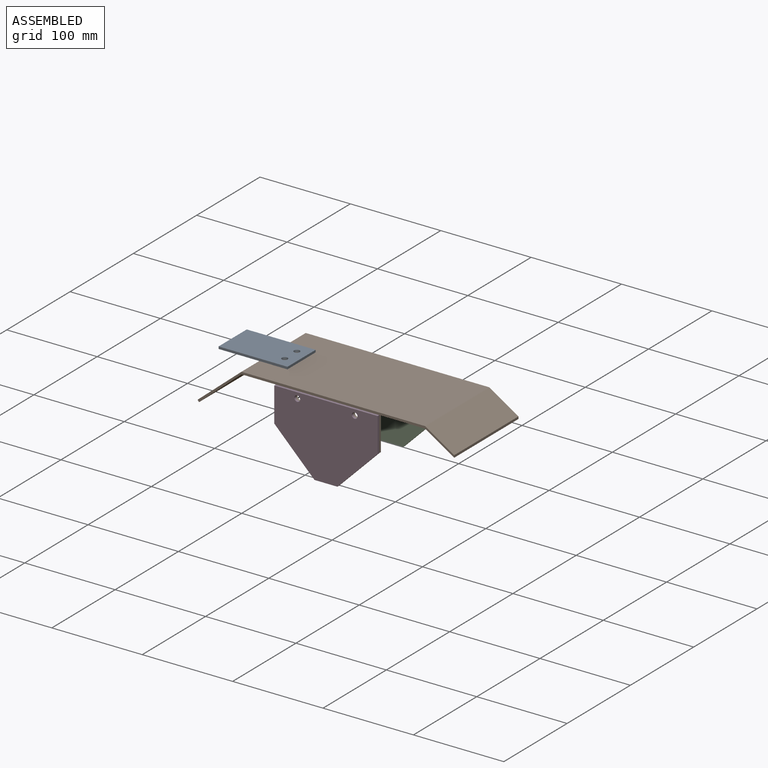
[diagram: assembled view]
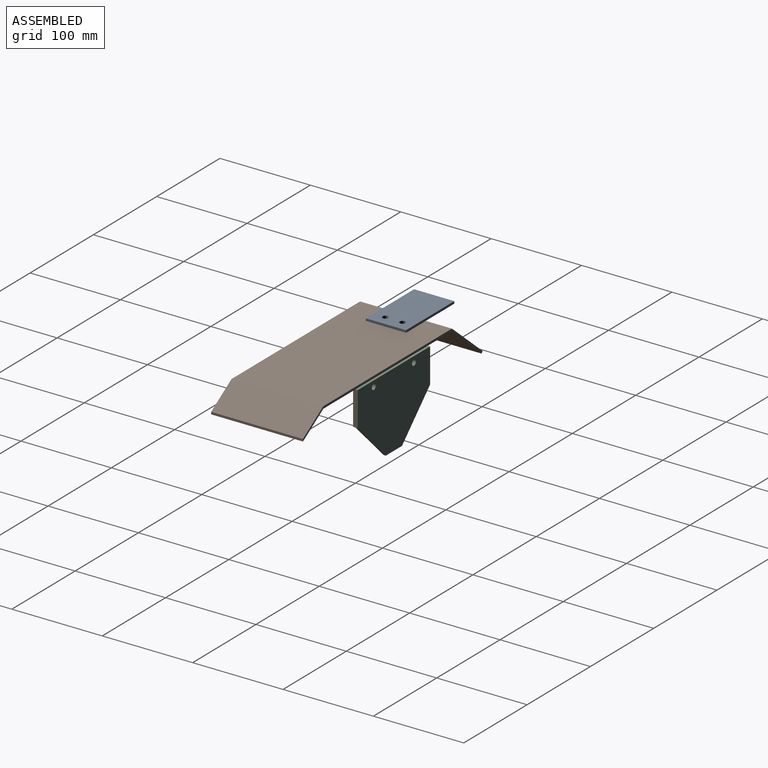
[diagram: assembled view, second angle]
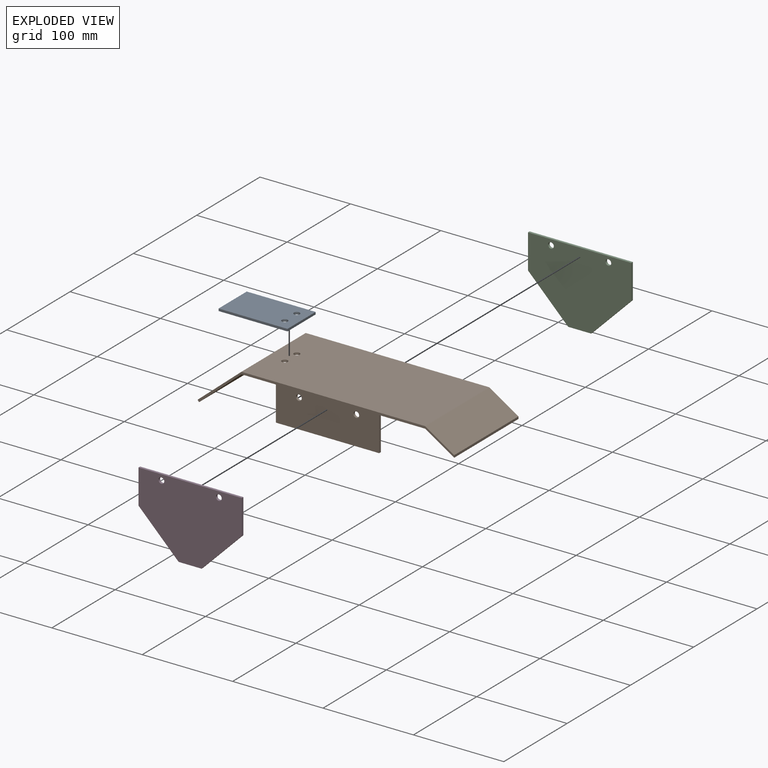
[diagram: exploded view]
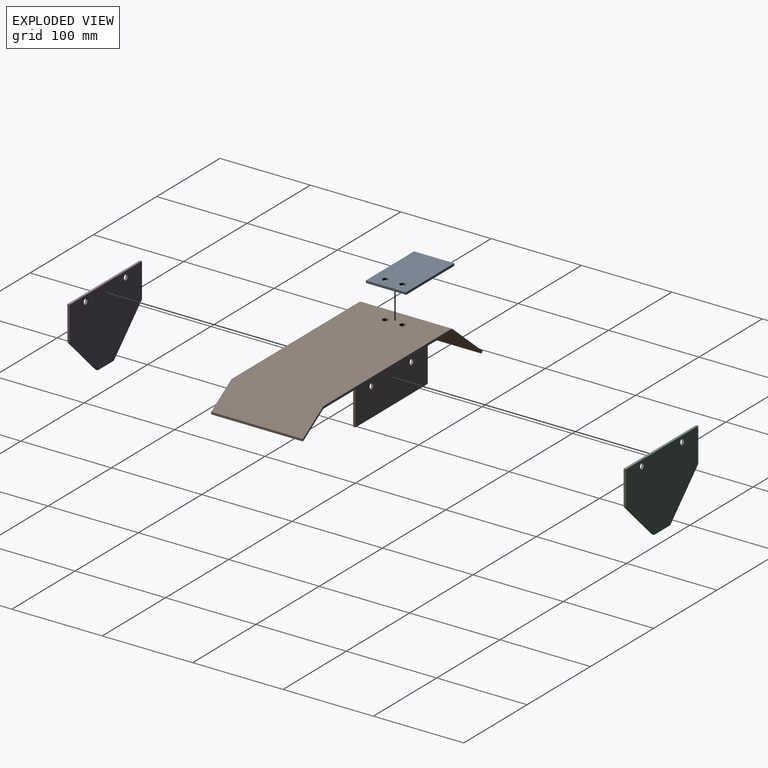
[diagram: exploded view, second angle]
ASSEMBLY  parts=4 mates=3
PART A: 8 faces, bbox 76.2x44.5x2.5 mm
  f0: plane 76.2x2.54mm, normal (0,1,0), area 193.5mm2, adj f1,f5,f6,f7
  f1: plane 44.45x2.54mm, normal (-1,0,0), area 112.9mm2, adj f0,f2,f6,f7
  f2: plane 76.2x2.54mm, normal (0,-1,0), area 193.5mm2, adj f1,f5,f6,f7
  f3: cylinder r=3.17mm len=6.35mm, axis (0,0,-1), area 50.7mm2, adj f6,f7
  f4: cylinder r=3.17mm len=6.35mm, axis (0,0,-1), area 50.7mm2, adj f6,f7
  f5: plane 44.45x2.54mm, normal (1,0,0), area 112.9mm2, adj f0,f2,f6,f7
  f6: plane 76.2x44.45mm, normal (0,0,1), area 3323.8mm2, adj f0,f1,f2,f3,f4,f5
  f7: plane 76.2x44.45mm, normal (0,0,-1), area 3323.8mm2, adj f0,f1,f2,f3,f4,f5
PART B: 24 faces, bbox 283.9x101.6x42.9 mm
  f0: plane 283.85x42.87mm, normal (0,1,0), area 5029.4mm2, adj f2,f3,f8,f9,f11,f12,f13,f14
  f1: plane 283.85x42.87mm, normal (0,-1,0), area 5029.4mm2, adj f2,f3,f4,f6,f7,f12,f13,f14
  f2: plane 203.2x101.6mm, normal (0,0,1), area 20581.8mm2, adj f0,f1,f13,f17,f22,f23
  f3: plane 203.2x101.6mm, normal (0,0,-1), area 20001.1mm2, adj f0,f1,f4,f5,f6,f8,f9,f10
  f4: plane 38.1x2.54mm, normal (-1,0,0), area 96.8mm2, adj f1,f3,f5,f7
  f5: plane 114.3x38.1mm, normal (0,1,0), area 4291.5mm2, adj f3,f4,f6,f7,f20,f21
  f6: plane 38.1x2.54mm, normal (1,0,0), area 96.8mm2, adj f1,f3,f5,f7
  f7: plane 114.3x2.54mm, normal (0,0,-1), area 290.3mm2, adj f1,f4,f5,f6
  f8: plane 38.1x2.54mm, normal (-1,0,0), area 96.8mm2, adj f0,f3,f10,f11
  f9: plane 38.1x2.54mm, normal (1,0,0), area 96.8mm2, adj f0,f3,f10,f11
  f10: plane 114.3x38.1mm, normal (0,-1,0), area 4291.5mm2, adj f3,f8,f9,f11,f18,f19
  f11: plane 114.3x2.54mm, normal (0,0,-1), area 290.3mm2, adj f0,f8,f9,f10
  f12: plane 101.6x46.88mm, normal (0.65,0,-0.76), area 6283mm2, adj f0,f1,f3,f14
  f13: plane 101.6x48.54mm, normal (-0.64,0,0.76), area 6451.6mm2, adj f0,f1,f2,f14
  f14: plane 101.6x1.93mm, normal (-0.76,0,-0.65), area 258.1mm2, adj f0,f1,f12,f13
  f15: plane 101.6x32.11mm, normal (-0.54,0,-0.84), area 3871mm2, adj f0,f1,f3,f16
  f16: plane 101.6x2.54mm, normal (1,0,0), area 258.1mm2, adj f0,f1,f15,f17
  f17: plane 101.6x32.11mm, normal (0.54,0,0.84), area 3871mm2, adj f0,f1,f2,f16
  f18: cylinder r=3.17mm len=6.35mm, axis (0,-1,0), area 50.7mm2, adj f0,f10
  f19: cylinder r=3.17mm len=6.35mm, axis (0,-1,0), area 50.7mm2, adj f0,f10
  f20: cylinder r=3.17mm len=6.35mm, axis (0,-1,0), area 50.7mm2, adj f1,f5
  f21: cylinder r=3.17mm len=6.35mm, axis (0,-1,0), area 50.7mm2, adj f1,f5
  f22: cylinder r=3.17mm len=6.35mm, axis (0,0,1), area 50.7mm2, adj f2,f3
  f23: cylinder r=3.17mm len=6.35mm, axis (0,0,1), area 50.7mm2, adj f2,f3
PART C: 10 faces, bbox 114.3x2.5x82.6 mm
  f0: plane 114.3x2.54mm, normal (0,0,1), area 290.3mm2, adj f1,f3,f4,f5
  f1: plane 38.1x2.54mm, normal (-1,0,0), area 96.8mm2, adj f0,f4,f5,f7
  f2: plane 25.4x2.54mm, normal (0,0,-1), area 64.5mm2, adj f4,f5,f6,f7
  f3: plane 38.1x2.54mm, normal (1,0,0), area 96.8mm2, adj f0,f4,f5,f6
  f4: plane 114.3x82.55mm, normal (0,-1,0), area 7396.3mm2, adj f0,f1,f2,f3,f6,f7,f8,f9
  f5: plane 114.3x82.55mm, normal (0,1,0), area 7396.3mm2, adj f0,f1,f2,f3,f6,f7,f8,f9
  f6: plane 44.45x44.45mm, normal (0.71,0,-0.71), area 159.7mm2, adj f2,f3,f4,f5
  f7: plane 44.45x44.45mm, normal (-0.71,0,-0.71), area 159.7mm2, adj f1,f2,f4,f5
  f8: cylinder r=3.17mm len=6.35mm, axis (0,-1,0), area 50.7mm2, adj f4,f5
  f9: cylinder r=3.17mm len=6.35mm, axis (0,-1,0), area 50.7mm2, adj f4,f5
PART D: same geometry as C
PLACE A rot(axis=(0,1,0),180deg) t=(-87.21,194.36,-68.57)mm
PLACE B t=(-63.7,-9.43,-73.65)mm
PLACE C t=(-17.07,94.71,-73.65)mm
PLACE D t=(-17.07,-9.43,-73.65)mm
MATE fastened B.f19 <-> D.f9  axis (0,-1,0) through (-0.2,-9.43,-80)mm
MATE fastened A.f4 <-> B.f22  axis (0,0,-1) through (-44.65,50.9,-71.11)mm
MATE fastened C.f9 <-> B.f19  axis (0,-1,0) through (-0.2,92.17,-80)mm
